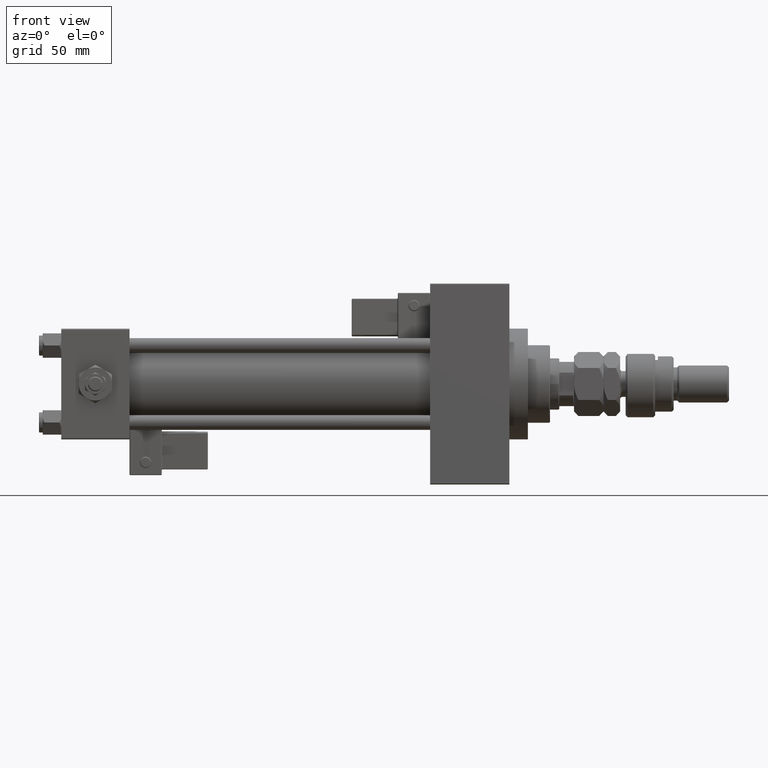
[diagram: clean part render]
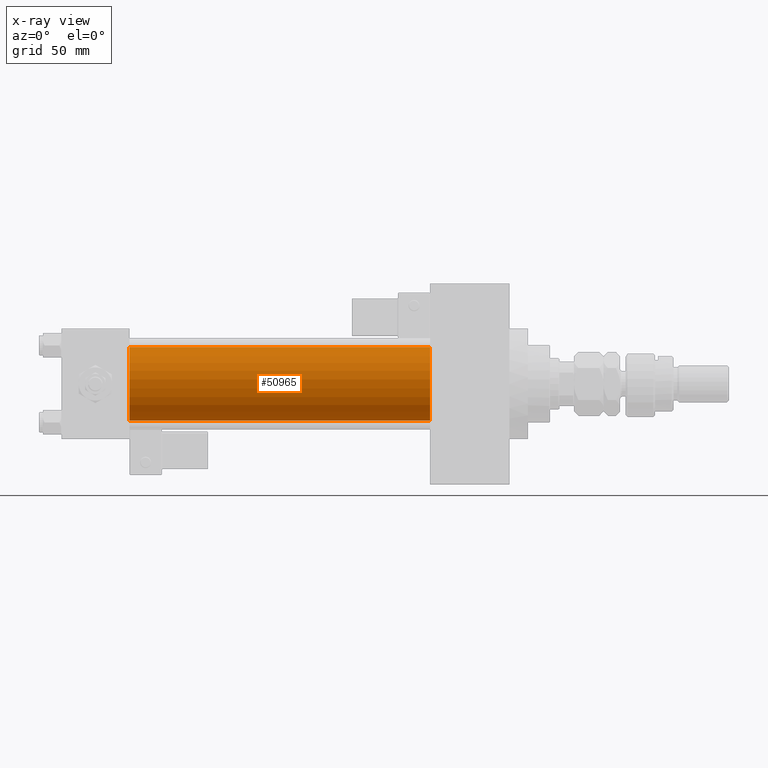
[diagram: x-ray — body ghosted, one internal face saturated and labeled with its STEP entity id]
A machine part, front view, then the same camera in x-ray: the body is ghosted and one INTERNAL B-rep face — a face not visible from any outside direction — is saturated and labeled: STEP entity #50965.
In plain terms, the highlighted cylindrical surface (partial cylindrical patch) has radius 20 mm, axis along (-1, -0, -0).
Its self-contained STEP definition (entity closure, byte-faithful):
#1208 = EDGE_CURVE ( 'NONE', #40168, #19634, #13672, .T. ) ;
#2388 = CARTESIAN_POINT ( 'NONE',  ( 200.0000000000000000, -2.602085213965210642E-15, 20.00000000000000000 ) ) ;
#4492 = VECTOR ( 'NONE', #18606, 1000.000000000000000 ) ;
#5036 = CIRCLE ( 'NONE', #40847, 20.00000000000000000 ) ;
#6982 = CARTESIAN_POINT ( 'NONE',  ( 200.0000000000000000, -1.527916156705042519E-16, -20.00000000000000000 ) ) ;
#7267 = AXIS2_PLACEMENT_3D ( 'NONE', #7349, #32498, #36873 ) ;
#7349 = CARTESIAN_POINT ( 'NONE',  ( 200.0000000000000000, -2.602085213965210642E-15, 0.000000000000000000 ) ) ;
#7398 = DIRECTION ( 'NONE',  ( 1.000000000000000000, 0.000000000000000000, 0.000000000000000000 ) ) ;
#10766 = CIRCLE ( 'NONE', #7267, 20.00000000000000000 ) ;
#12906 = VECTOR ( 'NONE', #36033, 1000.000000000000000 ) ;
#13672 = LINE ( 'NONE', #46731, #4492 ) ;
#17611 = AXIS2_PLACEMENT_3D ( 'NONE', #52809, #45155, #19750 ) ;
#18606 = DIRECTION ( 'NONE',  ( -1.000000000000000000, -0.000000000000000000, -0.000000000000000000 ) ) ;
#18844 = CARTESIAN_POINT ( 'NONE',  ( 200.0000000000000000, -1.527916156705042519E-16, -20.00000000000000000 ) ) ;
#19634 = VERTEX_POINT ( 'NONE', #35846 ) ;
#19750 = DIRECTION ( 'NONE',  ( 0.000000000000000000, 0.000000000000000000, 1.000000000000000000 ) ) ;
#21349 = EDGE_CURVE ( 'NONE', #40168, #35812, #10766, .T. ) ;
#24081 = DIRECTION ( 'NONE',  ( 0.000000000000000000, 0.000000000000000000, -1.000000000000000000 ) ) ;
#28461 = FACE_OUTER_BOUND ( 'NONE', #49877, .T. ) ;
#28551 = ORIENTED_EDGE ( 'NONE', *, *, #40437, .F. ) ;
#28566 = ORIENTED_EDGE ( 'NONE', *, *, #33142, .T. ) ;
#32498 = DIRECTION ( 'NONE',  ( 1.000000000000000000, 0.000000000000000000, 0.000000000000000000 ) ) ;
#33142 = EDGE_CURVE ( 'NONE', #35812, #47859, #48333, .T. ) ;
#35812 = VERTEX_POINT ( 'NONE', #6982 ) ;
#35846 = CARTESIAN_POINT ( 'NONE',  ( 37.00000000000000000, -2.602085213965210642E-15, 20.00000000000000000 ) ) ;
#36033 = DIRECTION ( 'NONE',  ( -1.000000000000000000, -0.000000000000000000, -0.000000000000000000 ) ) ;
#36873 = DIRECTION ( 'NONE',  ( 0.000000000000000000, 0.000000000000000000, -1.000000000000000000 ) ) ;
#38263 = ORIENTED_EDGE ( 'NONE', *, *, #21349, .T. ) ;
#39717 = ORIENTED_EDGE ( 'NONE', *, *, #1208, .F. ) ;
#40168 = VERTEX_POINT ( 'NONE', #2388 ) ;
#40437 = EDGE_CURVE ( 'NONE', #19634, #47859, #5036, .T. ) ;
#40847 = AXIS2_PLACEMENT_3D ( 'NONE', #44846, #7398, #24081 ) ;
#44846 = CARTESIAN_POINT ( 'NONE',  ( 37.00000000000000000, -2.602085213965210642E-15, 0.000000000000000000 ) ) ;
#45155 = DIRECTION ( 'NONE',  ( -1.000000000000000000, -0.000000000000000000, -0.000000000000000000 ) ) ;
#45841 = CARTESIAN_POINT ( 'NONE',  ( 37.00000000000000000, -1.527916156705042519E-16, -20.00000000000000000 ) ) ;
#46731 = CARTESIAN_POINT ( 'NONE',  ( 200.0000000000000000, -2.602085213965210642E-15, 20.00000000000000000 ) ) ;
#47859 = VERTEX_POINT ( 'NONE', #45841 ) ;
#48333 = LINE ( 'NONE', #18844, #12906 ) ;
#49877 = EDGE_LOOP ( 'NONE', ( #38263, #28566, #28551, #39717 ) ) ;
#50965 = ADVANCED_FACE ( 'NONE', ( #28461 ), #53079, .F. ) ;
#52809 = CARTESIAN_POINT ( 'NONE',  ( 200.0000000000000000, -2.602085213965210642E-15, 0.000000000000000000 ) ) ;
#53079 = CYLINDRICAL_SURFACE ( 'NONE', #17611, 20.00000000000000000 ) ;